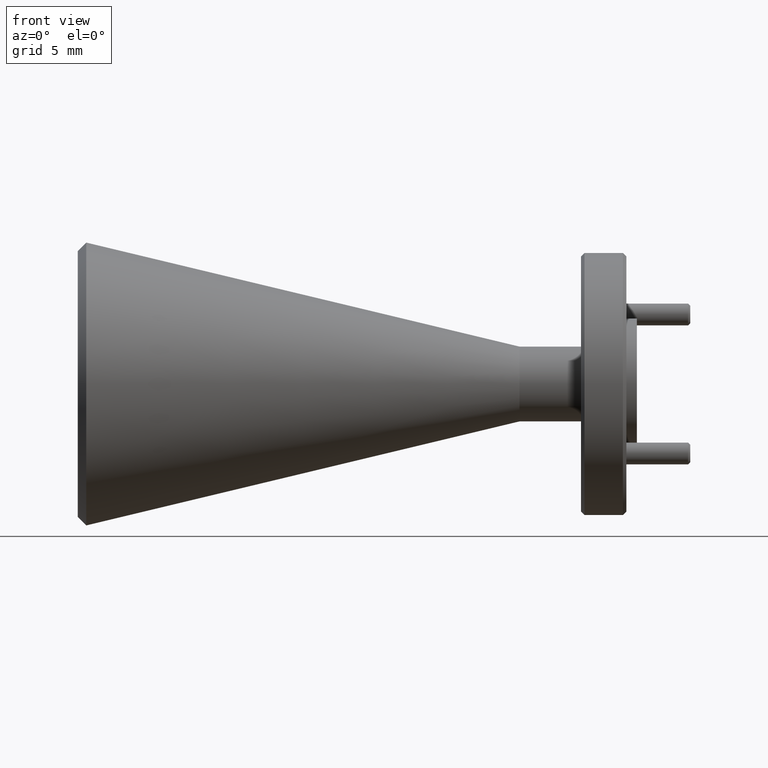
[diagram: clean part render]
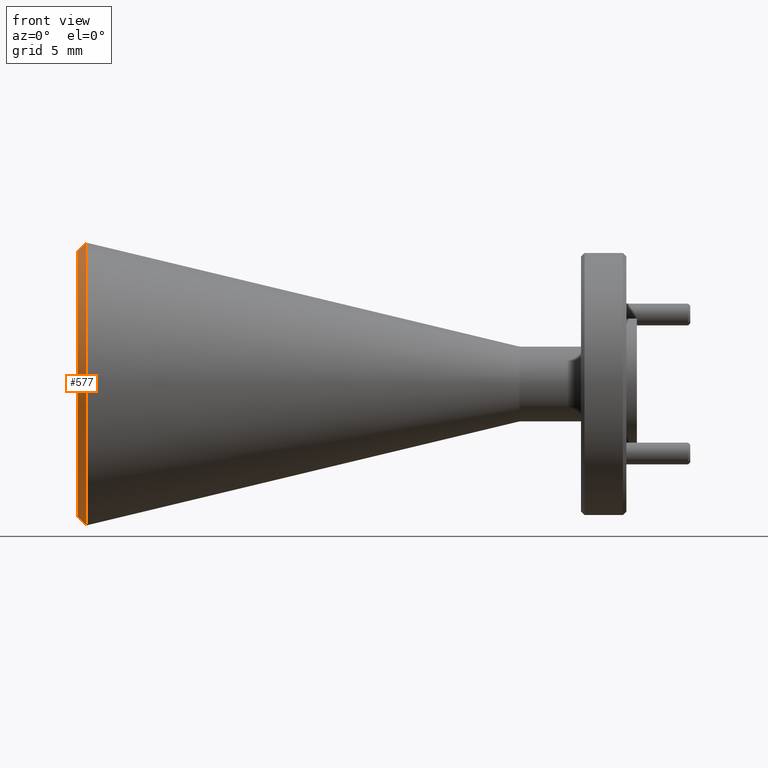
[diagram: same view with one face highlighted and labeled with its STEP entity id]
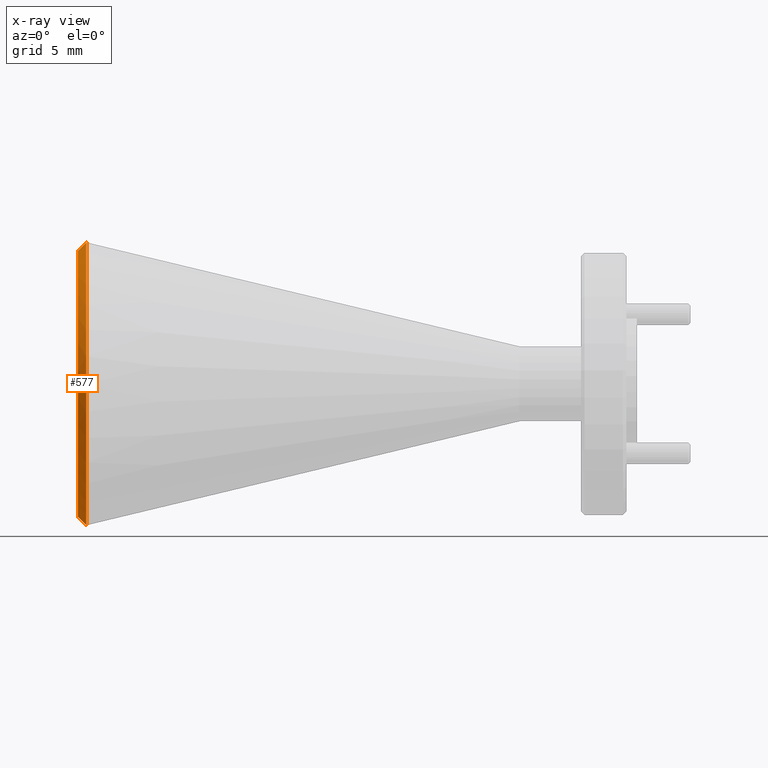
[diagram: x-ray of the same camera — body ghosted, the highlighted face saturated]
A machine part, front view. The second image highlights one B-rep face of the part: STEP entity #577.
The next image is the same camera in x-ray: the body ghosted, the highlighted face saturated — about 0% of this face is hidden behind the body in this view.
In plain terms, the highlighted conical surface has half-angle 45 deg.
Its self-contained STEP definition (entity closure, byte-faithful):
#60 = VERTEX_POINT ( 'NONE', #653 ) ;
#63 = CARTESIAN_POINT ( 'NONE',  ( -0.3684701128874876600, 0.6410890014899649500, 1.311091850986599900 ) ) ;
#70 = CARTESIAN_POINT ( 'NONE',  ( -0.3684701128874876600, 0.6410890014899649500, 0.5017078273424021600 ) ) ;
#80 = DIRECTION ( 'NONE',  ( 0.0000000000000000000, 0.0000000000000000000, 1.000000000000000000 ) ) ;
#100 = DIRECTION ( 'NONE',  ( 1.000000000000000000, -0.0000000000000000000, -0.0000000000000000000 ) ) ;
#327 = CARTESIAN_POINT ( 'NONE',  ( -0.3926621247095868900, 0.6410890014899649500, 0.5258998391645015600 ) ) ;
#366 = LINE ( 'NONE', #1915, #1576 ) ;
#375 = VECTOR ( 'NONE', #570, 39.37007874015748100 ) ;
#467 = CARTESIAN_POINT ( 'NONE',  ( -0.3926621247095868900, 0.6410890014899649500, 1.286899839164500600 ) ) ;
#481 = VERTEX_POINT ( 'NONE', #70 ) ;
#547 = ORIENTED_EDGE ( 'NONE', *, *, #2108, .F. ) ;
#570 = DIRECTION ( 'NONE',  ( 0.7071067811865465700, 8.659560562354944000E-017, 0.7071067811865484600 ) ) ;
#577 = ADVANCED_FACE ( 'NONE', ( #641 ), #1215, .T. ) ;
#611 = EDGE_CURVE ( 'NONE', #60, #481, #1426, .T. ) ;
#641 = FACE_OUTER_BOUND ( 'NONE', #1818, .T. ) ;
#653 = CARTESIAN_POINT ( 'NONE',  ( -0.3684701128874876600, 0.6410890014899649500, 1.311091850986599900 ) ) ;
#886 = DIRECTION ( 'NONE',  ( -1.000000000000000000, 0.0000000000000000000, 0.0000000000000000000 ) ) ;
#1084 = CARTESIAN_POINT ( 'NONE',  ( -0.3926621247095868900, 0.6410890014899649500, 0.9063998391645010600 ) ) ;
#1086 = DIRECTION ( 'NONE',  ( 0.0000000000000000000, 0.0000000000000000000, -1.000000000000000000 ) ) ;
#1099 = DIRECTION ( 'NONE',  ( 0.0000000000000000000, 0.0000000000000000000, -1.000000000000000000 ) ) ;
#1215 = CONICAL_SURFACE ( 'NONE', #1850, 0.4046920118220988000, 0.7853981633974496100 ) ;
#1406 = AXIS2_PLACEMENT_3D ( 'NONE', #1624, #2115, #1086 ) ;
#1426 = CIRCLE ( 'NONE', #1406, 0.4046920118220988000 ) ;
#1432 = CARTESIAN_POINT ( 'NONE',  ( -0.3684701128874876600, 0.6410890014899649500, 0.9063998391645010600 ) ) ;
#1442 = CIRCLE ( 'NONE', #1788, 0.3804999999999995600 ) ;
#1465 = ORIENTED_EDGE ( 'NONE', *, *, #1795, .F. ) ;
#1507 = ORIENTED_EDGE ( 'NONE', *, *, #611, .F. ) ;
#1576 = VECTOR ( 'NONE', #1714, 39.37007874015748100 ) ;
#1594 = VERTEX_POINT ( 'NONE', #327 ) ;
#1603 = VERTEX_POINT ( 'NONE', #467 ) ;
#1620 = ORIENTED_EDGE ( 'NONE', *, *, #1825, .T. ) ;
#1624 = CARTESIAN_POINT ( 'NONE',  ( -0.3684701128874876600, 0.6410890014899649500, 0.9063998391645010600 ) ) ;
#1714 = DIRECTION ( 'NONE',  ( 0.7071067811865465700, 0.0000000000000000000, -0.7071067811865484600 ) ) ;
#1788 = AXIS2_PLACEMENT_3D ( 'NONE', #1084, #886, #80 ) ;
#1795 = EDGE_CURVE ( 'NONE', #1603, #60, #1917, .T. ) ;
#1818 = EDGE_LOOP ( 'NONE', ( #1465, #547, #1620, #1507 ) ) ;
#1825 = EDGE_CURVE ( 'NONE', #1594, #481, #366, .T. ) ;
#1850 = AXIS2_PLACEMENT_3D ( 'NONE', #1432, #100, #1099 ) ;
#1915 = CARTESIAN_POINT ( 'NONE',  ( -0.3684701128874876600, 0.6410890014899649500, 0.5017078273424022700 ) ) ;
#1917 = LINE ( 'NONE', #63, #375 ) ;
#2108 = EDGE_CURVE ( 'NONE', #1594, #1603, #1442, .T. ) ;
#2115 = DIRECTION ( 'NONE',  ( 1.000000000000000000, -0.0000000000000000000, -0.0000000000000000000 ) ) ;